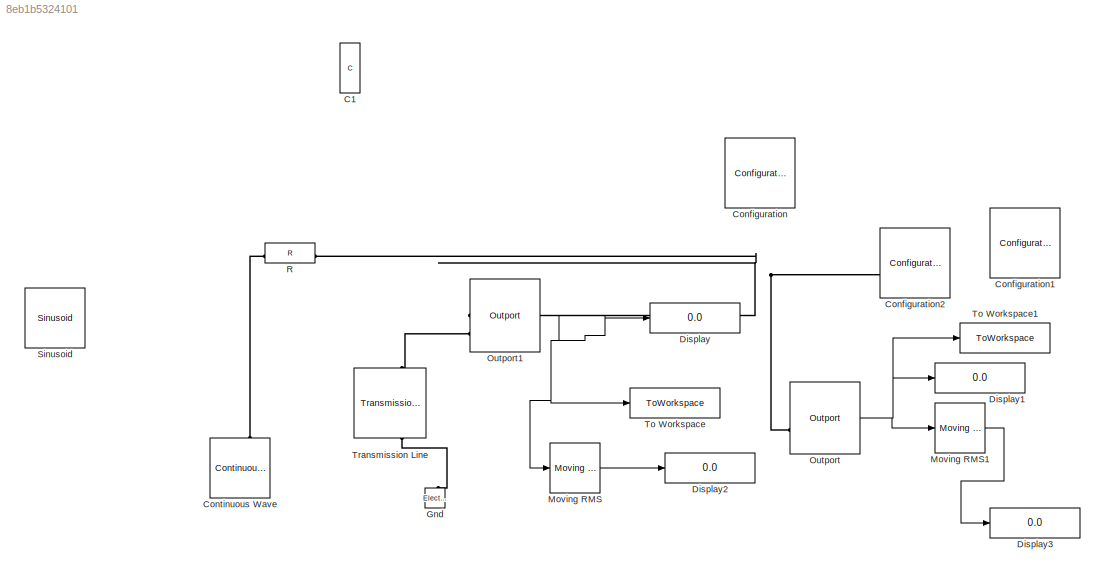
MODEL slx_8eb1b5324101
KIND model
CONFIG AbsTol = auto
CONFIG EnableMultiTasking = off
CONFIG FixedStep = auto
CONFIG MaxStep = auto
CONFIG MinStep = auto
CONFIG RelTol = 1e-3
CONFIG SampleTimeConstraint = Unconstrained
CONFIG SolverName = VariableStepAuto
CONFIG StartFcn = clear\nclc
CONFIG StartTime = 0.0
CONFIG StopFcn = %{\nomega = 2*pi*1e9;\nt1 = out.tout(1);\nt2 = out.tout(2);\nA1 = out.voltage(1);\nA2 = out.voltage(2);\nB1 = out.current(1);\nB2 = out.current(2);\n%%%%%%%%%%%%\ntemp = (A1*sin(omega*t2) - A2*sin(omega*t1))/...\n    (A2*cos(omega*t1) - A1*cos(omega*t2));\ntetaV = atan(temp);\ntetaVD = tetaV*180/pi;\nrV = A1/sin(omega*t1 + teta);\n%%%%%%%%%%\ntemp = (B1*sin(omega*t2) - B2*sin(omega*t1))/...\n    (B2*cos(omega*t1)...<+310ch>
CONFIG StopTime = 50*1e-9
BLOCK [Reference] C1  REF=simrfV2elements/C
  Commented = on
  NameLocation = left
  SourceBlock = simrfV2elements/C
  SourceType = Capacitor
BLOCK [Reference] Configuration  REF=simrfV2util1/Configuration
  Commented = on
  SourceBlock = simrfV2util1/Configuration
  SourceType = Configuration
BLOCK [Reference] Configuration1  REF=simrfV2util1/Configuration
  Commented = on
  SourceBlock = simrfV2util1/Configuration
  SourceType = Configuration
BLOCK [Reference] Configuration2  REF=simrfV2util1/Configuration
  SourceBlock = simrfV2util1/Configuration
  SourceType = Configuration
BLOCK [Reference] Continuous Wave  REF=simrfV2sources1/Continuous
Wave
  NameLocation = right
  SourceBlock = simrfV2sources1/Continuous\nWave
  SourceType = CW Source
BLOCK [Display] Display
  Decimation = 1
BLOCK [Display] Display1
  Decimation = 1
BLOCK [Display] Display2
  Decimation = 1
BLOCK [Display] Display3
  Decimation = 1
BLOCK [Reference] Gnd  REF=simrfV2_lib/Elements/Electrical Reference
  LibrarySourceBlock = simrfV2elements/Gnd
  SourceBlock = simrfV2_lib/Elements/Electrical Reference
  SourceType = Electrical Reference
BLOCK [Reference] Moving RMS  REF=dspstat3/Moving
RMS
  SourceBlock = dspstat3/Moving\nRMS
  SourceType = dsp.simulink.MovingRMS
BLOCK [Reference] Moving RMS1  REF=dspstat3/Moving
RMS
  SourceBlock = dspstat3/Moving\nRMS
  SourceType = dsp.simulink.MovingRMS
BLOCK [Reference] Outport  REF=simrfV2util1/Outport
  SourceBlock = simrfV2util1/Outport
  SourceType = Outport
BLOCK [Reference] Outport1  REF=simrfV2util1/Outport
  SourceBlock = simrfV2util1/Outport
  SourceType = Outport
BLOCK [Reference] R  REF=simrfV2elements/R
  SourceBlock = simrfV2elements/R
  SourceType = Resistor
BLOCK [Reference] Sinusoid  REF=simrfV2sources1/Sinusoid
  Commented = on
  NameLocation = right
  SourceBlock = simrfV2sources1/Sinusoid
  SourceType = Sinusoidal Source
BLOCK [ToWorkspace] To Workspace
  FixptAsFi = on
  MaxDataPoints = inf
  SampleTime = -1
  Save2DSignal = 2-D array (concatenate along first dimension)
  VariableName = current
BLOCK [ToWorkspace] To Workspace1
  FixptAsFi = on
  MaxDataPoints = inf
  SampleTime = -1
  Save2DSignal = 2-D array (concatenate along first dimension)
  VariableName = voltage
BLOCK [Reference] Transmission Line  REF=simrfV2elements/Transmission
Line
  NameLocation = left
  SourceBlock = simrfV2elements/Transmission\nLine
  SourceType = Transmission Line
  UserDataPersistent = on
LINE Moving RMS1:1 -> Display3:1
LINE Moving RMS:1 -> Display2:1
NET Outport1:1 -> Display:1, Moving RMS:1, To Workspace:1
NET Outport:1 -> Display1:1, Moving RMS1:1, To Workspace1:1
PNET net1: Configuration2:LConn1 -- Outport1:LConn1 -- Outport:LConn1 -- R:RConn1
PLINE Continuous Wave:LConn1 -- R:LConn1
PLINE Gnd:LConn1 -- Transmission Line:RConn1
PLINE Outport1:LConn2 -- Transmission Line:LConn1
note: NET lines group one-source signal fan-out (src -> all destinations, sorted); 1:1 wires keep LINE; PNET lines group multi-terminal physical nets as a canonical sorted terminal list (undirected conserving connections); 2-terminal nets keep the pairwise PLINE form
